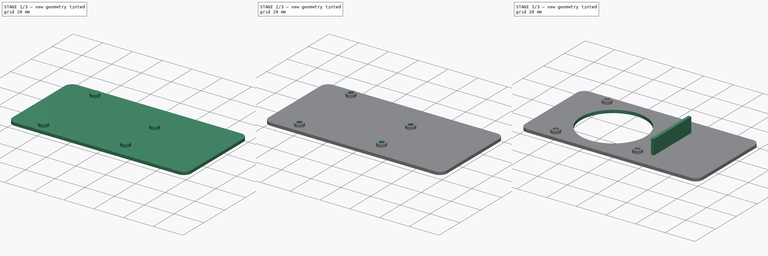
[diagram: build sequence overview — one tinted view per stage of 3, left to right]
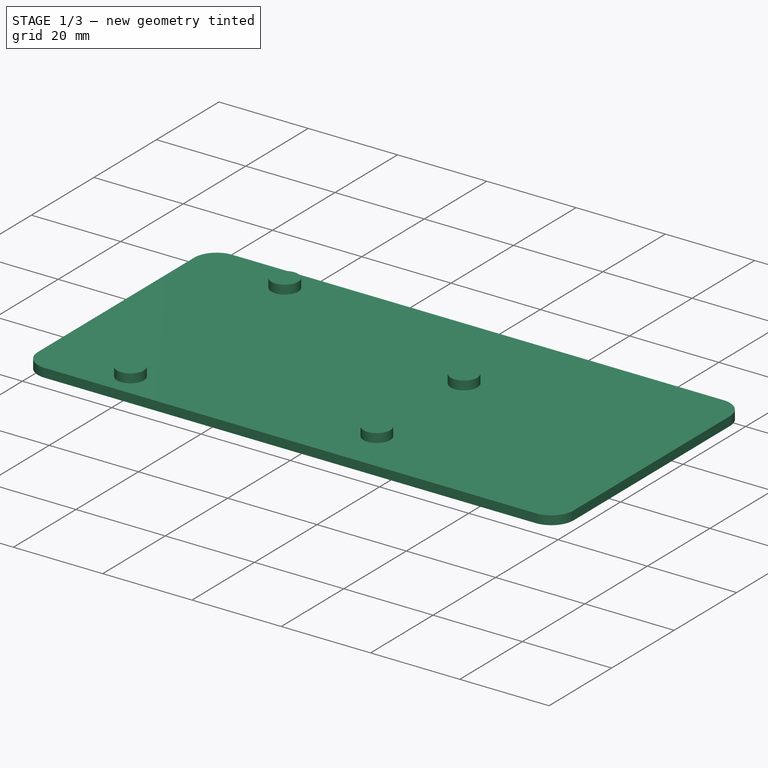
[diagram: stage 1 of 3 — iso view after this stage's code; geometry added in this stage tinted green]
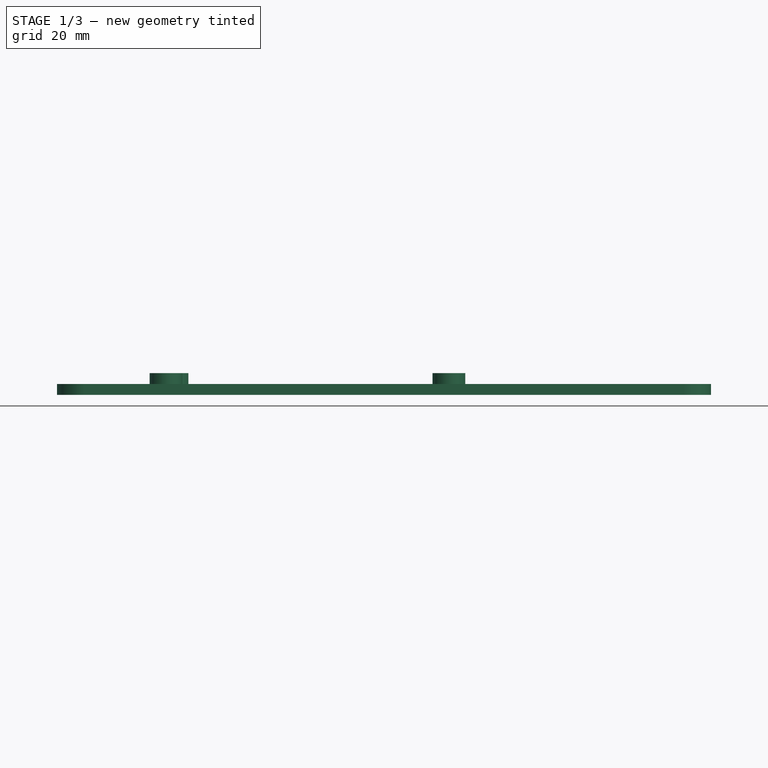
[diagram: stage 1 of 3 — front view after this stage's code; geometry added in this stage tinted green]
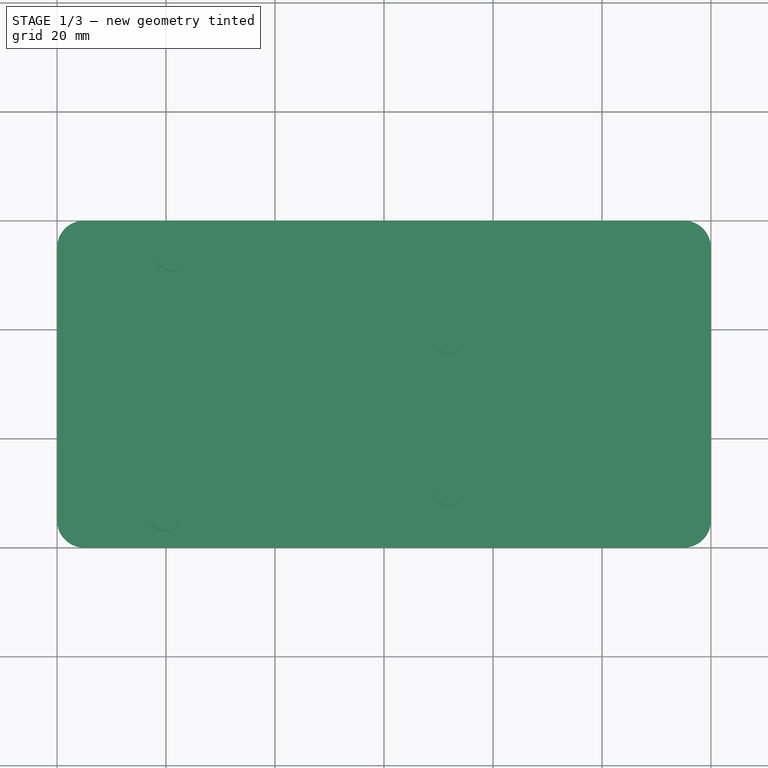
[diagram: stage 1 of 3 — top view after this stage's code; geometry added in this stage tinted green]
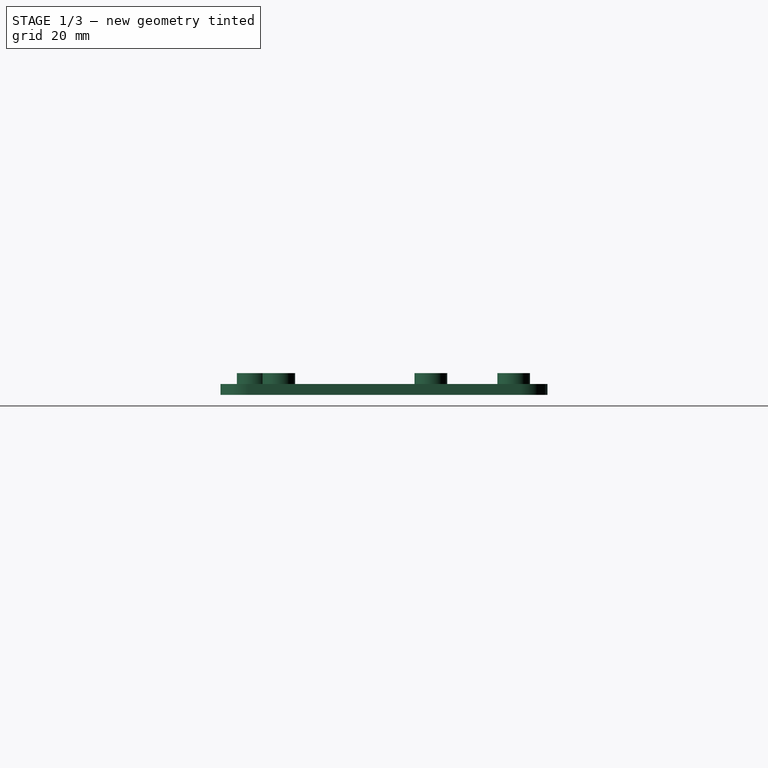
[diagram: stage 1 of 3 — right view after this stage's code; geometry added in this stage tinted green]
FCSTD DOCUMENT
Label: UnoCase
objects: Sketcher::SketchObject×5, PartDesign::Pad×3, PartDesign::Pocket×2
note: 13 computed .brp shape members not serialized (recipe doc carries the construction recipe); baked Part::Feature solids carry a one-line shape summary decoded from their .brp

FEATURE [Sketcher::SketchObject] Sketch
  sketch-geometry (8):
    g0: LineSegment StartX=4.99999 StartY=0 StartZ=0 EndX=115 EndY=0 EndZ=0
    g1: ArcOfCircle CenterX=5 CenterY=55 CenterZ=0 NormalX=0 NormalY=0 NormalZ=1 Radius=5 StartAngle=1.5708 EndAngle=3.1416
    g2: ArcOfCircle CenterX=115 CenterY=55 CenterZ=0 NormalX=0 NormalY=0 NormalZ=1 Radius=5 StartAngle=6.28318 EndAngle=7.85398
    g3: ArcOfCircle CenterX=5 CenterY=5 CenterZ=0 NormalX=0 NormalY=0 NormalZ=1 Radius=5 StartAngle=3.14159 EndAngle=4.71239
    g4: LineSegment StartX=3.1e-11 StartY=55 StartZ=0 EndX=3.1e-11 EndY=5.00002 EndZ=0
    g5: LineSegment StartX=4.99999 StartY=60 StartZ=0 EndX=115 EndY=60 EndZ=0
    g6: ArcOfCircle CenterX=115 CenterY=5 CenterZ=0 NormalX=0 NormalY=0 NormalZ=1 Radius=5 StartAngle=4.71239 EndAngle=6.28319
    g7: LineSegment StartX=120 StartY=5.00002 StartZ=0 EndX=120 EndY=55 EndZ=0
  constraints (28):
    c: Horizontal(g0)
    c: DistanceY(g0) = 0
    c: Coincident(g3,g0)
    c: Coincident(g4,g3)
    c: Vertical(g4)
    c: Coincident(g4,g1)
    c: Coincident(g5,g1)
    c: Coincident(g5,g2)
    c: Horizontal(g5)
    c: Tangent(g5,g2)
    c: Tangent(g5,g1)
    c: Tangent(g1,g4)
    c: Tangent(g4,g3)
    c: Tangent(g3,g0)
    c: Coincident(g6,g0)
    c: Coincident(g7,g6)
    c: Coincident(g7,g2)
    c: Tangent(g7,g2)
    c: Vertical(g7)
    c: Tangent(g6,g7)
    c: Tangent(g6,g0)
    c: Equal(g6,g2)
    c: Equal(g2,g1)
    c: Equal(g1,g3)
    c: Radius(g1) = 5
    c: DistanceX(g3) = 0
    c: DistanceX(g1,g2) = 120
    c: DistanceY(g1,g0) = -60
FEATURE [PartDesign::Pad] Pad
  Length = 2
  MirroredExtent = false
  Sketch = -> Sketch
FEATURE [Sketcher::SketchObject] Sketch001
  Placement = pos=(0,0,2) rot=(0,0,1;0rad)
  Support = -> Pad [Face10]
  sketch-geometry (4):
    g0: Circle CenterX=20 CenterY=6 CenterZ=0 NormalX=0 NormalY=0 NormalZ=1 Radius=3
    g1: Circle CenterX=71.9 CenterY=10.7 CenterZ=0 NormalX=0 NormalY=0 NormalZ=1 Radius=3
    g2: Circle CenterX=71.9 CenterY=38.6 CenterZ=0 NormalX=0 NormalY=0 NormalZ=1 Radius=3
    g3: Circle CenterX=21.1 CenterY=53.8 CenterZ=0 NormalX=0 NormalY=0 NormalZ=1 Radius=3
  constraints (12):
    c: Equal(g3,g0)
    c: Equal(g0,g1)
    c: Equal(g1,g2)
    c: Radius(g3) = 3
    c: DistanceX(g0,g1) = 51.9
    c: DistanceY(g2,g1) = -27.9
    c: DistanceX(g3,g2) = 50.8
    c: DistanceX(g3,g0) = -1.1
    c: DistanceY(g3,g2) = -15.2
    c: DistanceY(g1,g0) = -4.7
    c: DistanceX(g0) = 20
    c: DistanceY(g0) = 6
FEATURE [PartDesign::Pad] Pad001
  Length = 2
  MirroredExtent = false
  Sketch = -> Sketch001
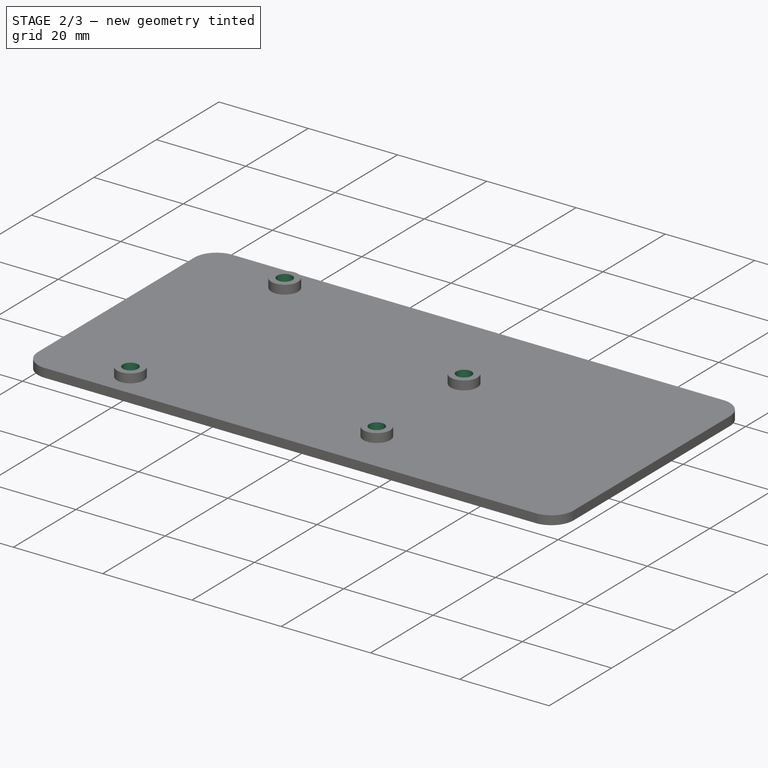
[diagram: stage 2 of 3 — iso view after this stage's code; geometry added in this stage tinted green]
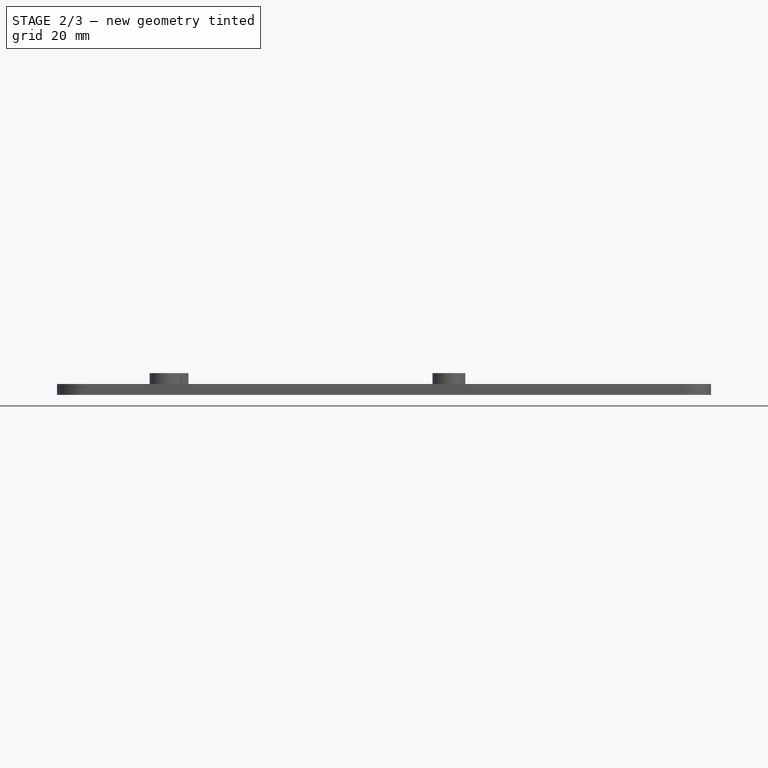
[diagram: stage 2 of 3 — front view after this stage's code; geometry added in this stage tinted green]
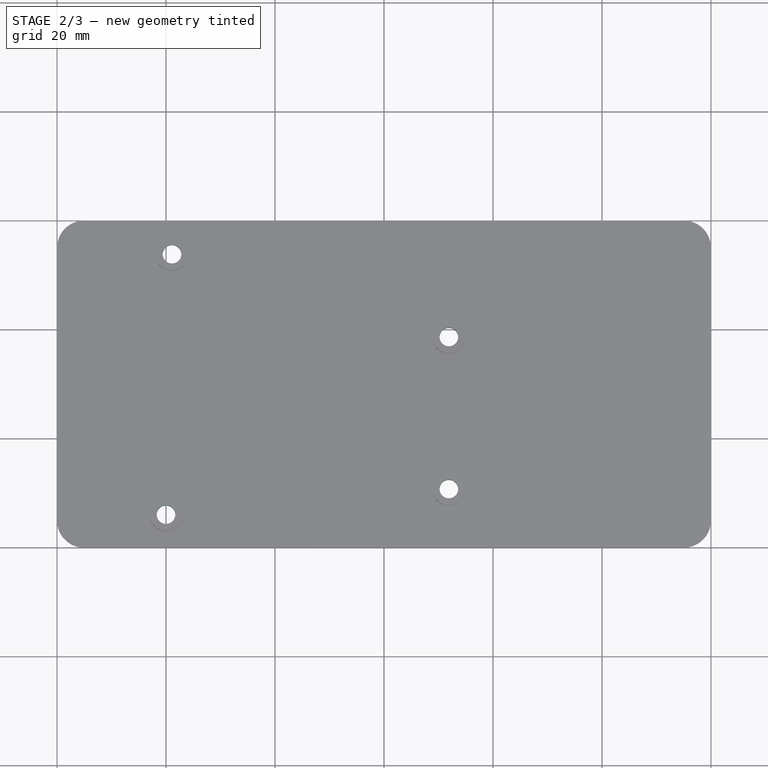
[diagram: stage 2 of 3 — top view after this stage's code; geometry added in this stage tinted green]
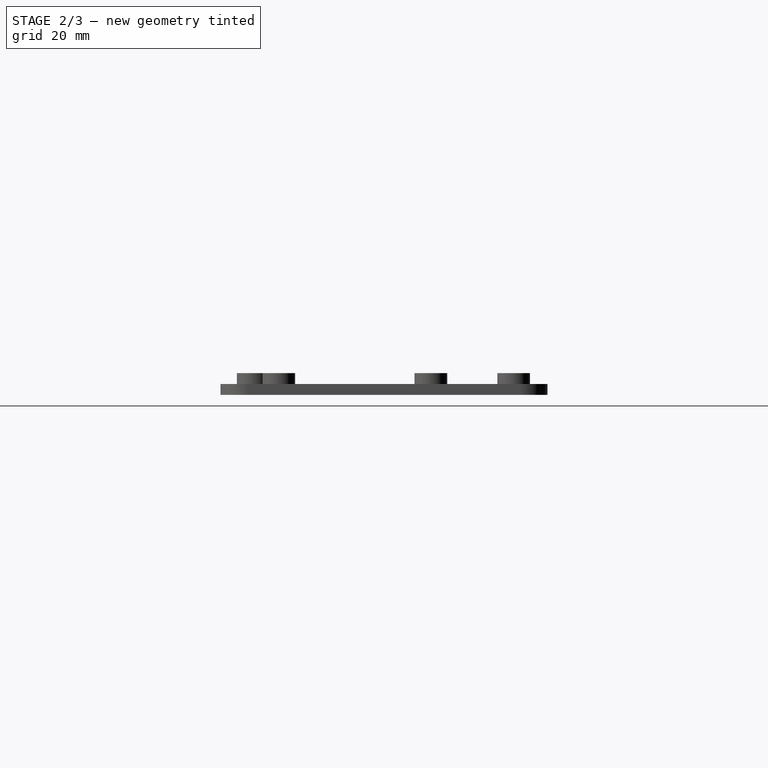
[diagram: stage 2 of 3 — right view after this stage's code; geometry added in this stage tinted green]
FEATURE [Sketcher::SketchObject] Sketch002
  Placement = pos=(0,0,4) rot=(0,0,1;0rad)
  Support = -> Pad001 [Face15]
  sketch-geometry (4):
    g0: Circle CenterX=20 CenterY=6 CenterZ=0 NormalX=0 NormalY=0 NormalZ=1 Radius=1.7
    g1: Circle CenterX=71.9 CenterY=10.7 CenterZ=0 NormalX=0 NormalY=0 NormalZ=1 Radius=1.7
    g2: Circle CenterX=71.9 CenterY=38.6 CenterZ=0 NormalX=0 NormalY=0 NormalZ=1 Radius=1.7
    g3: Circle CenterX=21.1 CenterY=53.8 CenterZ=0 NormalX=0 NormalY=0 NormalZ=1 Radius=1.7
  constraints (12):
    c: Equal(g3,g0)
    c: Equal(g0,g1)
    c: Equal(g1,g2)
    c: Radius(g3) = 1.7
    c: DistanceX(g0,g1) = 51.9
    c: DistanceY(g2,g1) = -27.9
    c: DistanceX(g3,g2) = 50.8
    c: DistanceX(g3,g0) = -1.1
    c: DistanceY(g3,g2) = -15.2
    c: DistanceY(g1,g0) = -4.7
    c: DistanceX(g0) = 20
    c: DistanceY(g0) = 6
FEATURE [PartDesign::Pocket] Pocket
  Length = 5
  Sketch = -> Sketch002
  Type = 0
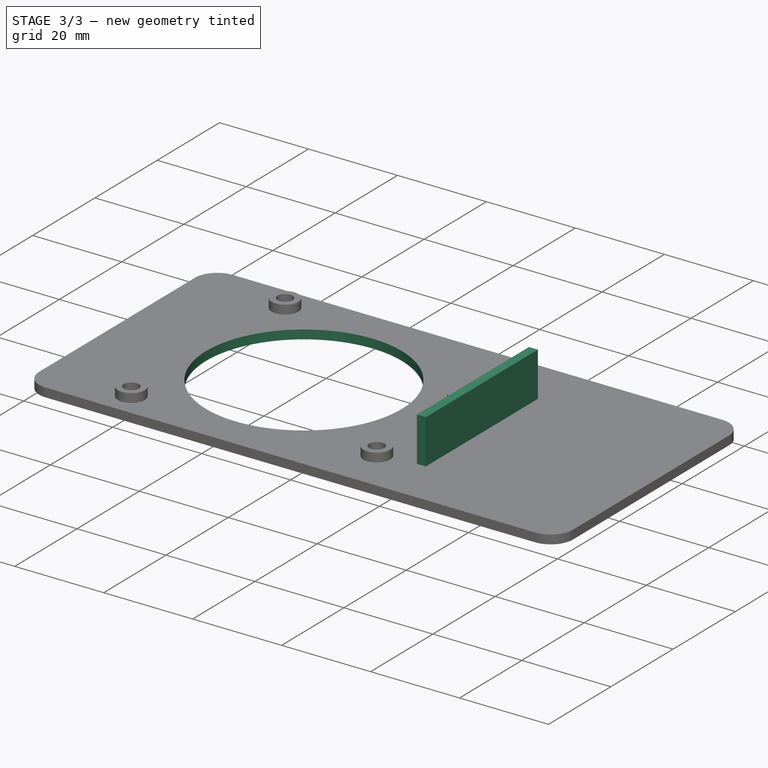
[diagram: stage 3 of 3 — iso view after this stage's code; geometry added in this stage tinted green]
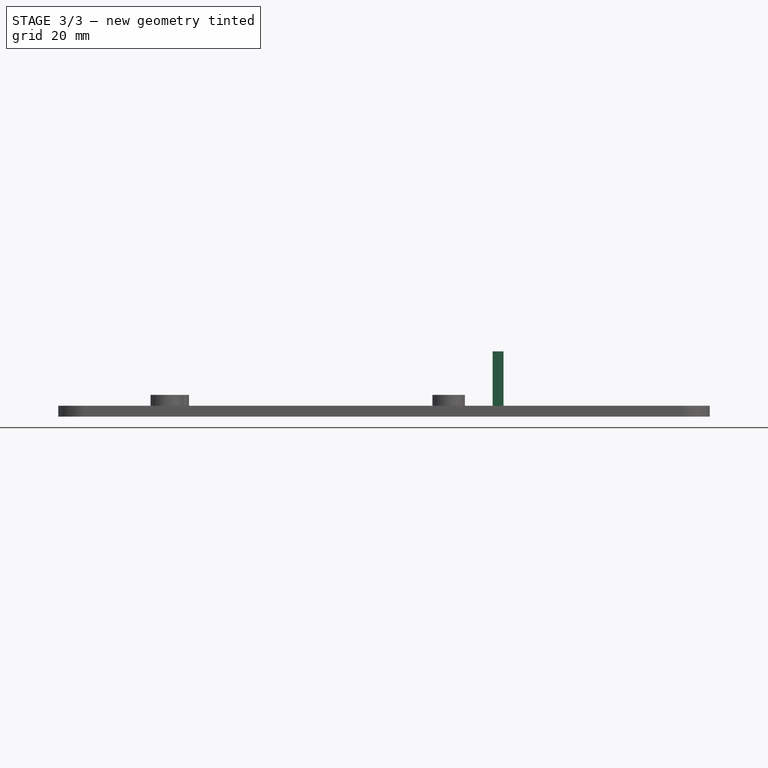
[diagram: stage 3 of 3 — front view after this stage's code; geometry added in this stage tinted green]
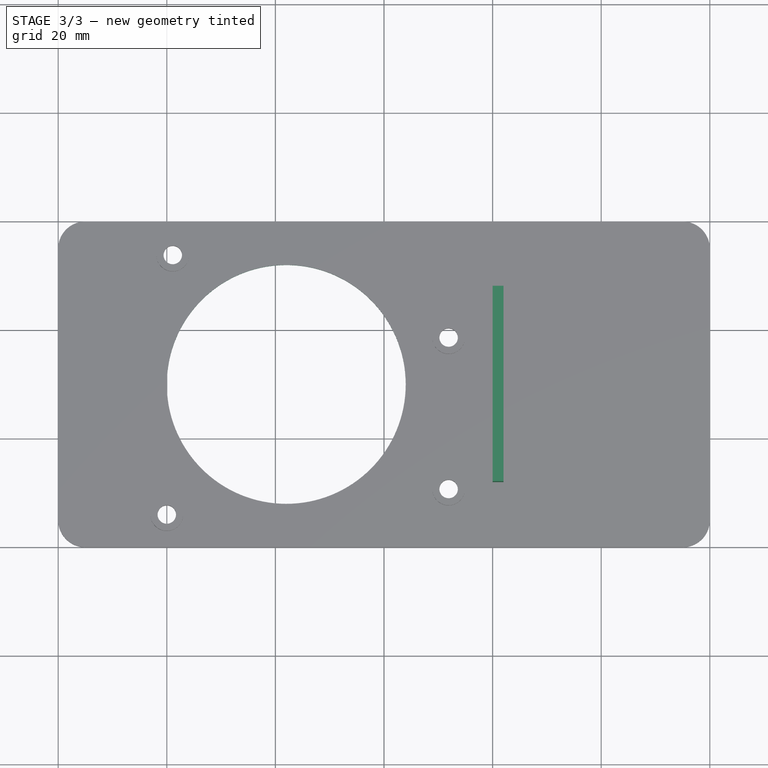
[diagram: stage 3 of 3 — top view after this stage's code; geometry added in this stage tinted green]
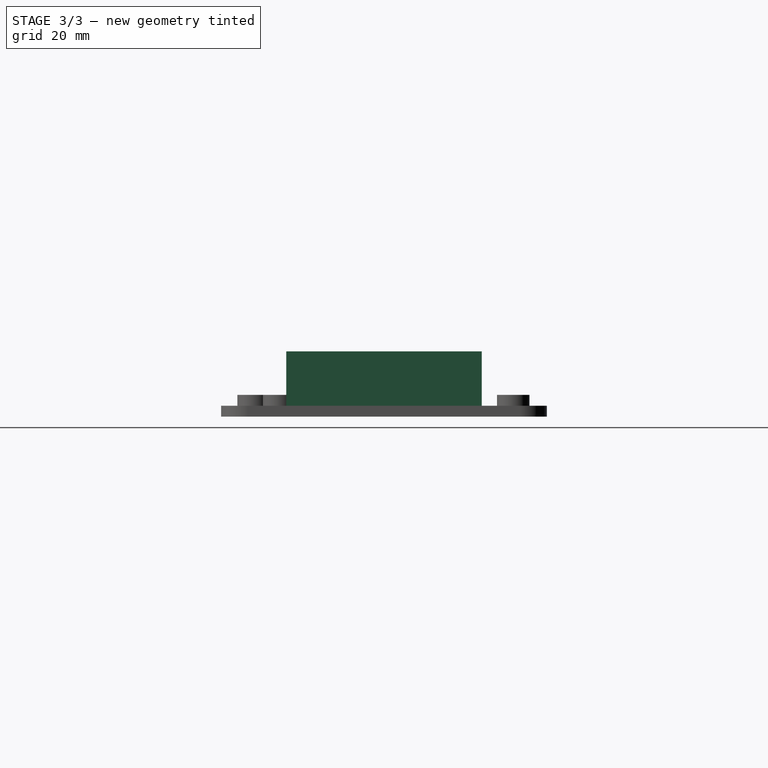
[diagram: stage 3 of 3 — right view after this stage's code; geometry added in this stage tinted green]
FEATURE [Sketcher::SketchObject] Sketch003
  Placement = pos=(0,0,2) rot=(0,0,1;0rad)
  Support = -> Pocket [Face5]
  sketch-geometry (4):
    g0: LineSegment StartX=80 StartY=48 StartZ=0 EndX=82 EndY=48 EndZ=0
    g1: LineSegment StartX=82 StartY=48 StartZ=0 EndX=82 EndY=12 EndZ=0
    g2: LineSegment StartX=82 StartY=12 StartZ=0 EndX=80 EndY=12 EndZ=0
    g3: LineSegment StartX=80 StartY=12 StartZ=0 EndX=80 EndY=48 EndZ=0
  constraints (12):
    c: Coincident(g0,g1)
    c: Coincident(g1,g2)
    c: Coincident(g2,g3)
    c: Coincident(g3,g0)
    c: Horizontal(g0)
    c: Horizontal(g2)
    c: Vertical(g1)
    c: Vertical(g3)
    c: DistanceX(g2) = -2
    c: DistanceY(g1) = -36
    c: DistanceX(g2) = 80
    c: DistanceY(g2) = 12
FEATURE [PartDesign::Pad] Pad002
  Length = 10
  MirroredExtent = false
  Sketch = -> Sketch003
FEATURE [Sketcher::SketchObject] Sketch004
  Placement = pos=(0,0,2) rot=(0,0,1;0rad)
  Support = -> Pad002 [Face5]
  sketch-geometry (1):
    g0: Circle CenterX=42 CenterY=30 CenterZ=0 NormalX=0 NormalY=0 NormalZ=1 Radius=22
  constraints (3):
    c: Radius(g0) = 22
    c: DistanceX(g0) = 42
    c: DistanceY(g0) = 30
FEATURE [PartDesign::Pocket] Pocket001
  Length = 5
  Sketch = -> Sketch004
  Type = 0
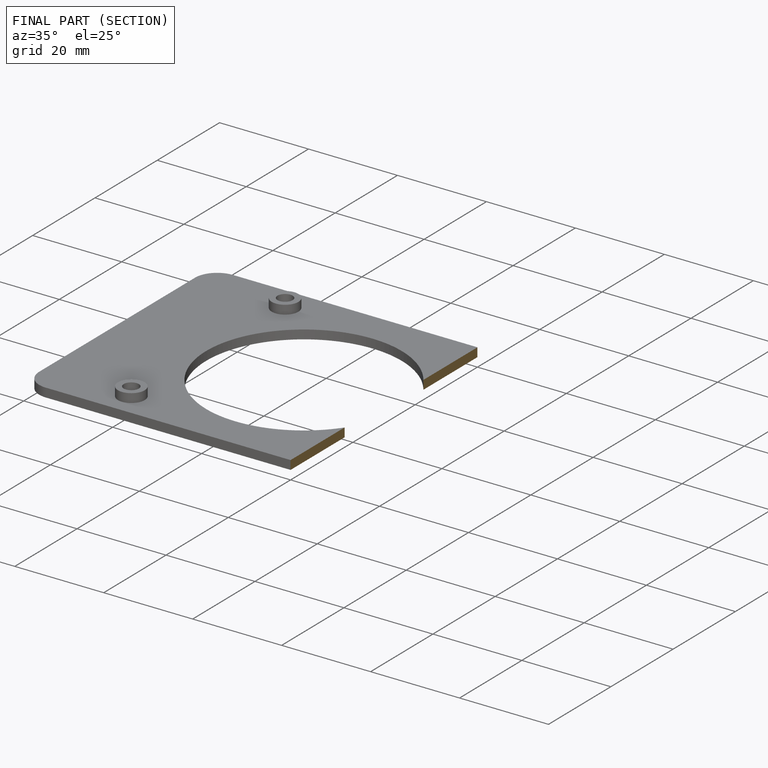
[diagram: finished part — half-section view (interior)]
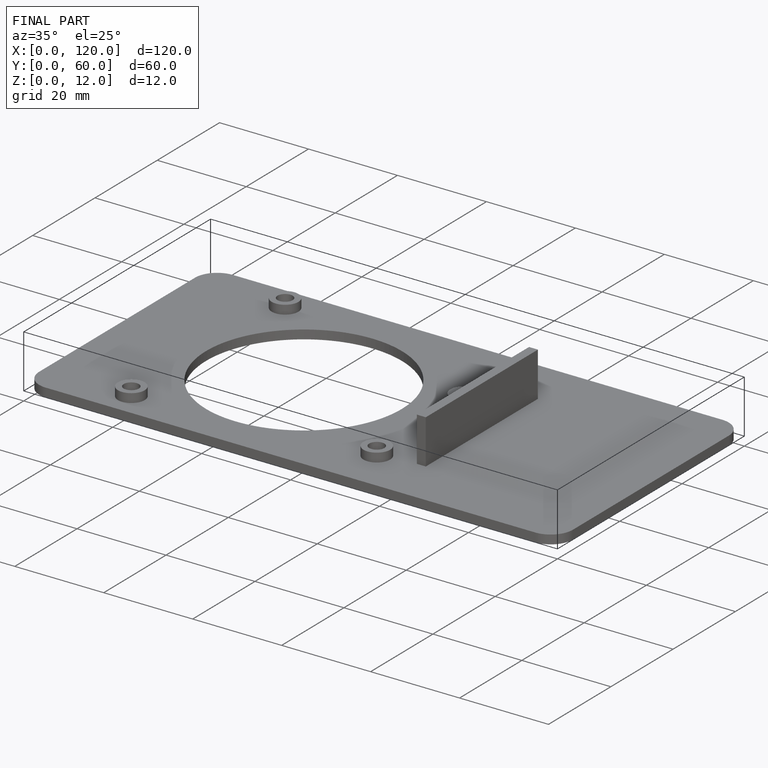
[diagram: finished part — iso view with bounding-box wireframe]
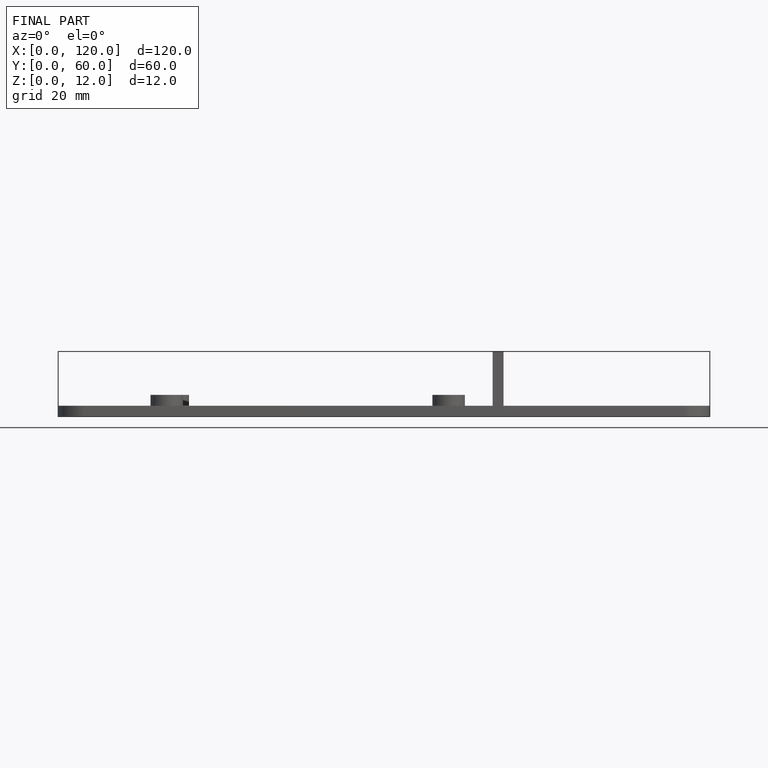
[diagram: finished part — front view with bounding-box wireframe]
